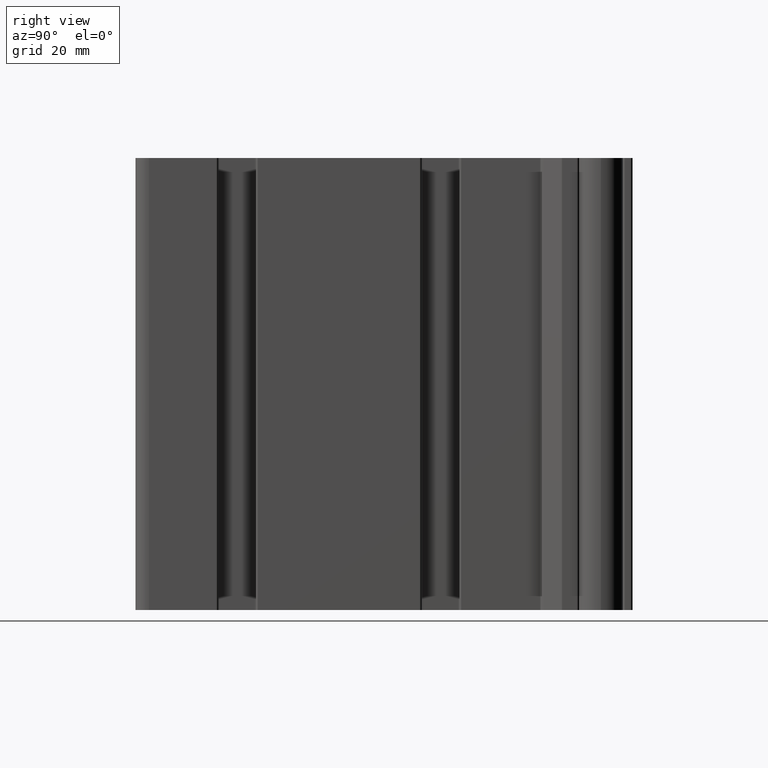
[diagram: clean part render]
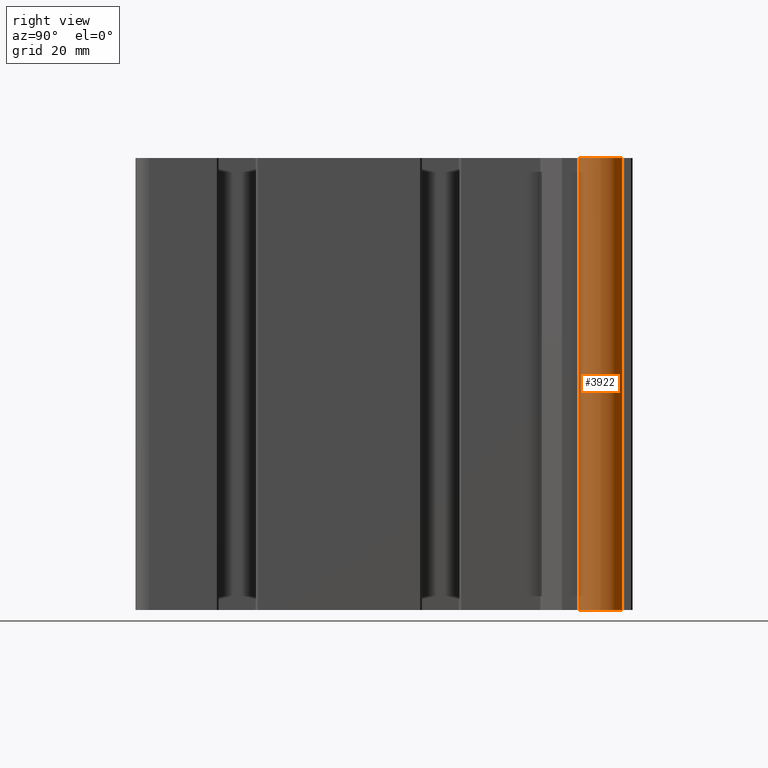
[diagram: same view with one face highlighted and labeled with its STEP entity id]
A machine part, right view. The second image highlights one B-rep face of the part: STEP entity #3922.
In plain terms, the highlighted cylindrical surface (bore or boss wall) has radius 5 mm, axis along (0, -0, 1).
Its self-contained STEP definition (entity closure, byte-faithful):
#318=FACE_OUTER_BOUND('',#529,.T.);
#529=EDGE_LOOP('',(#3599,#3600,#3601,#3602));
#771=CIRCLE('',#4428,5.);
#772=CIRCLE('',#4430,5.);
#1115=LINE('',#6847,#1458);
#1458=VECTOR('',#5663,5.);
#1847=VERTEX_POINT('',#6842);
#1848=VERTEX_POINT('',#6845);
#2431=EDGE_CURVE('',#1847,#1847,#771,.T.);
#2432=EDGE_CURVE('',#1848,#1848,#772,.T.);
#2433=EDGE_CURVE('',#1848,#1847,#1115,.T.);
#3599=ORIENTED_EDGE('',*,*,#2432,.F.);
#3600=ORIENTED_EDGE('',*,*,#2433,.T.);
#3601=ORIENTED_EDGE('',*,*,#2431,.T.);
#3602=ORIENTED_EDGE('',*,*,#2433,.F.);
#3724=CYLINDRICAL_SURFACE('',#4429,5.);
#3922=ADVANCED_FACE('',(#318),#3724,.T.);
#4428=AXIS2_PLACEMENT_3D('',#6843,#5657,#5658);
#4429=AXIS2_PLACEMENT_3D('',#6844,#5659,#5660);
#4430=AXIS2_PLACEMENT_3D('',#6846,#5661,#5662);
#5657=DIRECTION('center_axis',(0.,0.,1.));
#5658=DIRECTION('ref_axis',(-1.,0.,0.));
#5659=DIRECTION('center_axis',(0.,0.,1.));
#5660=DIRECTION('ref_axis',(-1.,0.,0.));
#5661=DIRECTION('center_axis',(0.,0.,1.));
#5662=DIRECTION('ref_axis',(-1.,0.,0.));
#5663=DIRECTION('',(0.,0.,-1.));
#6842=CARTESIAN_POINT('',(5.,6.12323399573677E-16,150.));
#6843=CARTESIAN_POINT('Origin',(0.,0.,150.));
#6844=CARTESIAN_POINT('Origin',(0.,0.,0.));
#6845=CARTESIAN_POINT('',(5.,6.12323399573677E-16,250.));
#6846=CARTESIAN_POINT('Origin',(0.,0.,250.));
#6847=CARTESIAN_POINT('',(5.,6.12323399573677E-16,0.));